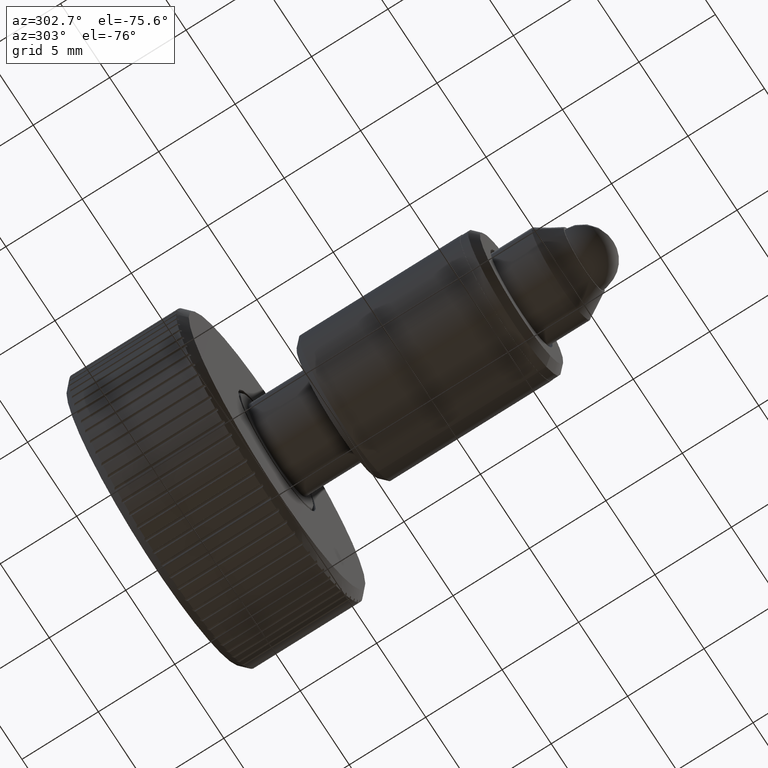
[diagram: clean part render]
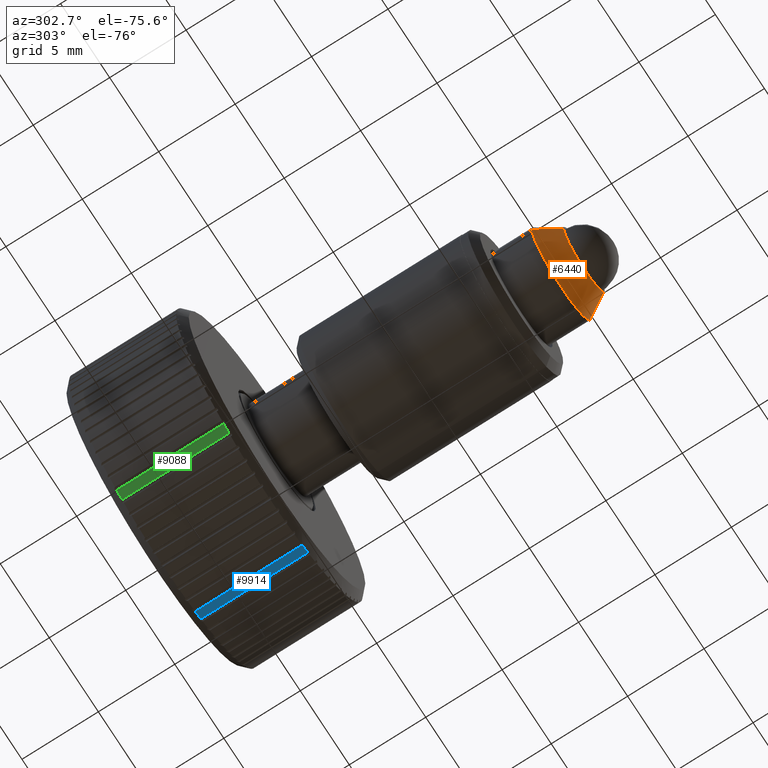
[diagram: same view with three faces highlighted in distinct colors, each labeled with its STEP entity id]
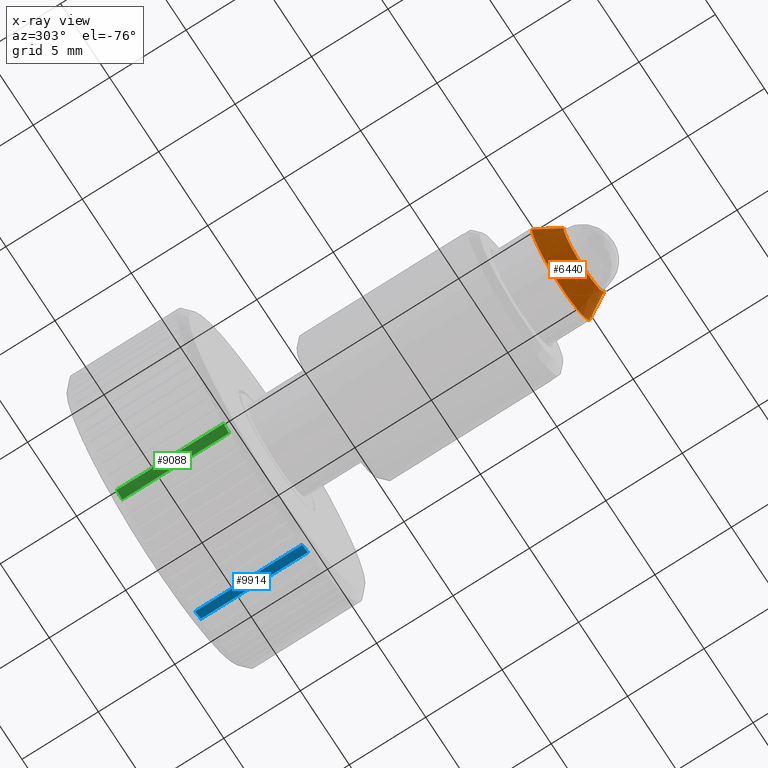
[diagram: x-ray of the same camera — body ghosted, the three highlighted faces saturated]
A machine part, auxiliary view with three faces highlighted in distinct colors.
The next image is the same camera in x-ray (body ghosted, the three faces saturated) — at least one of them is partly hidden behind the body in this view.
Their STEP definitions:

[orange] entity #6440 — the highlighted conical surface has half-angle 30.964 deg.
#38 = CARTESIAN_POINT ( 'NONE',  ( 2.100000000000000500, 7.332110811570581600E-015, 3.122849337825748400E-016 ) ) ;
#2040 = CARTESIAN_POINT ( 'NONE',  ( -2.100000000000000500, -7.332110811570581600E-015, 0.0000000000000000000 ) ) ;
#2193 = DIRECTION ( 'NONE',  ( -0.5144957554275266800, 0.8574929257125441000, 0.0000000000000000000 ) ) ;
#2222 = DIRECTION ( 'NONE',  ( 3.491481338843133000E-015, -1.000000000000000000, -0.0000000000000000000 ) ) ;
#2495 = DIRECTION ( 'NONE',  ( 0.5144957554275206800, 0.8574929257125477600, 6.300755800592165200E-017 ) ) ;
#2746 = CONICAL_SURFACE ( 'NONE', #8875, 2.999999999999994700, 0.5404195002705808300 ) ;
#2795 = LINE ( 'NONE', #9478, #5134 ) ;
#2944 = VECTOR ( 'NONE', #2193, 1000.000000000000000 ) ;
#3259 = VERTEX_POINT ( 'NONE', #5432 ) ;
#3959 = VERTEX_POINT ( 'NONE', #10081 ) ;
#4637 = CARTESIAN_POINT ( 'NONE',  ( 9.860761315262647600E-029, 0.0000000000000000000, 0.0000000000000000000 ) ) ;
#5088 = DIRECTION ( 'NONE',  ( -1.000000000000000000, -3.469446951953620500E-015, 0.0000000000000000000 ) ) ;
#5134 = VECTOR ( 'NONE', #2495, 999.9999999999998900 ) ;
#5432 = CARTESIAN_POINT ( 'NONE',  ( 2.999999999999989800, 1.500000000000011800, 3.673940397442053500E-016 ) ) ;
#5521 = DIRECTION ( 'NONE',  ( 1.000000000000000000, 3.491481338843133400E-015, 0.0000000000000000000 ) ) ;
#5684 = CARTESIAN_POINT ( 'NONE',  ( -3.000000000000000000, 1.499999999999990900, 0.0000000000000000000 ) ) ;
#5867 = VERTEX_POINT ( 'NONE', #2040 ) ;
#5887 = AXIS2_PLACEMENT_3D ( 'NONE', #7473, #2222, #8332 ) ;
#6057 = ORIENTED_EDGE ( 'NONE', *, *, #11306, .T. ) ;
#6245 = EDGE_CURVE ( 'NONE', #5867, #9790, #7578, .T. ) ;
#6440 = ADVANCED_FACE ( 'NONE', ( #10543 ), #2746, .T. ) ;
#6522 = EDGE_LOOP ( 'NONE', ( #10217, #7838, #6057, #9026 ) ) ;
#6782 = AXIS2_PLACEMENT_3D ( 'NONE', #4637, #10742, #5521 ) ;
#6815 = DIRECTION ( 'NONE',  ( -3.491481338843133000E-015, 1.000000000000000000, 0.0000000000000000000 ) ) ;
#7087 = EDGE_CURVE ( 'NONE', #3959, #3259, #7539, .T. ) ;
#7473 = CARTESIAN_POINT ( 'NONE',  ( -5.237222008264609300E-015, 1.500000000000001300, 0.0000000000000000000 ) ) ;
#7539 = CIRCLE ( 'NONE', #5887, 2.999999999999994700 ) ;
#7578 = CIRCLE ( 'NONE', #6782, 2.100000000000000500 ) ;
#7602 = LINE ( 'NONE', #5684, #2944 ) ;
#7656 = CARTESIAN_POINT ( 'NONE',  ( -5.237222008264609300E-015, 1.500000000000001300, 0.0000000000000000000 ) ) ;
#7838 = ORIENTED_EDGE ( 'NONE', *, *, #6245, .F. ) ;
#8332 = DIRECTION ( 'NONE',  ( 1.000000000000000000, 3.469446951953620500E-015, 0.0000000000000000000 ) ) ;
#8723 = EDGE_CURVE ( 'NONE', #9790, #3259, #2795, .T. ) ;
#8875 = AXIS2_PLACEMENT_3D ( 'NONE', #7656, #6815, #5088 ) ;
#9026 = ORIENTED_EDGE ( 'NONE', *, *, #7087, .T. ) ;
#9478 = CARTESIAN_POINT ( 'NONE',  ( 2.999999999999989800, 1.500000000000011800, 3.673940397442053500E-016 ) ) ;
#9790 = VERTEX_POINT ( 'NONE', #38 ) ;
#10081 = CARTESIAN_POINT ( 'NONE',  ( -3.000000000000000000, 1.499999999999990900, 0.0000000000000000000 ) ) ;
#10217 = ORIENTED_EDGE ( 'NONE', *, *, #8723, .F. ) ;
#10543 = FACE_OUTER_BOUND ( 'NONE', #6522, .T. ) ;
#10742 = DIRECTION ( 'NONE',  ( 3.491481338843133000E-015, -1.000000000000000000, -0.0000000000000000000 ) ) ;
#11306 = EDGE_CURVE ( 'NONE', #5867, #3959, #7602, .T. ) ;

[blue] entity #9914 — the highlighted cylindrical surface (partial cylindrical patch) has radius 9.5 mm, axis along (-0, 1, 0).
#200 = ORIENTED_EDGE ( 'NONE', *, *, #1092, .T. ) ;
#302 = CIRCLE ( 'NONE', #6829, 9.500000000000001800 ) ;
#421 = DIRECTION ( 'NONE',  ( -3.491481338843133000E-015, 1.000000000000000000, -0.0000000000000000000 ) ) ;
#495 = DIRECTION ( 'NONE',  ( 3.491481338843133000E-015, -1.000000000000000000, 0.0000000000000000000 ) ) ;
#1092 = EDGE_CURVE ( 'NONE', #7030, #4915, #10650, .T. ) ;
#2082 = CARTESIAN_POINT ( 'NONE',  ( -7.017877491074688600E-014, 20.10000000000001200, 3.155443620884047200E-030 ) ) ;
#2160 = LINE ( 'NONE', #9391, #6554 ) ;
#2364 = ORIENTED_EDGE ( 'NONE', *, *, #3433, .T. ) ;
#2465 = AXIS2_PLACEMENT_3D ( 'NONE', #5665, #421, #6544 ) ;
#2599 = CYLINDRICAL_SURFACE ( 'NONE', #7422, 9.500000000000001800 ) ;
#2949 = CARTESIAN_POINT ( 'NONE',  ( 3.342979311548198500, 20.60000000000002300, -8.892383781785415700 ) ) ;
#3433 = EDGE_CURVE ( 'NONE', #8078, #7030, #6751, .T. ) ;
#3890 = DIRECTION ( 'NONE',  ( -1.000000000000000000, -3.652049423109067200E-015, 3.491481338843132600E-015 ) ) ;
#4424 = CARTESIAN_POINT ( 'NONE',  ( 3.342979311548173600, 27.60000000000002300, -8.892383781785415700 ) ) ;
#4915 = VERTEX_POINT ( 'NONE', #4424 ) ;
#4964 = VERTEX_POINT ( 'NONE', #9033 ) ;
#5099 = DIRECTION ( 'NONE',  ( 3.491481338843133000E-015, -1.000000000000000000, -0.0000000000000000000 ) ) ;
#5310 = DIRECTION ( 'NONE',  ( -3.491481338843133000E-015, 1.000000000000000000, 0.0000000000000000000 ) ) ;
#5665 = CARTESIAN_POINT ( 'NONE',  ( -7.192451558016843400E-014, 20.60000000000000900, 3.155443620884047200E-030 ) ) ;
#5729 = CARTESIAN_POINT ( 'NONE',  ( -9.636488495207038000E-014, 27.60000000000001200, 3.155443620884047200E-030 ) ) ;
#6180 = CARTESIAN_POINT ( 'NONE',  ( 3.342979311548186100, 24.10000000000002300, -8.892383781785415700 ) ) ;
#6544 = DIRECTION ( 'NONE',  ( 1.000000000000000000, 3.652049423109067200E-015, -3.491481338843132600E-015 ) ) ;
#6554 = VECTOR ( 'NONE', #5099, 1000.000000000000000 ) ;
#6619 = DIRECTION ( 'NONE',  ( 1.000000000000000000, 3.652049423109067200E-015, -3.491481338843132600E-015 ) ) ;
#6751 = CIRCLE ( 'NONE', #2465, 9.500000000000001800 ) ;
#6829 = AXIS2_PLACEMENT_3D ( 'NONE', #5729, #495, #6619 ) ;
#7030 = VERTEX_POINT ( 'NONE', #2949 ) ;
#7422 = AXIS2_PLACEMENT_3D ( 'NONE', #2082, #8168, #3890 ) ;
#7637 = ORIENTED_EDGE ( 'NONE', *, *, #10083, .T. ) ;
#8078 = VERTEX_POINT ( 'NONE', #9124 ) ;
#8168 = DIRECTION ( 'NONE',  ( -3.491481338843133000E-015, 1.000000000000000000, 0.0000000000000000000 ) ) ;
#8331 = ORIENTED_EDGE ( 'NONE', *, *, #9935, .T. ) ;
#9033 = CARTESIAN_POINT ( 'NONE',  ( 3.924021532451366800, 27.60000000000002300, -8.651708213575934900 ) ) ;
#9124 = CARTESIAN_POINT ( 'NONE',  ( 3.924021532451391600, 20.60000000000002300, -8.651708213575936700 ) ) ;
#9313 = EDGE_LOOP ( 'NONE', ( #2364, #200, #8331, #7637 ) ) ;
#9391 = CARTESIAN_POINT ( 'NONE',  ( 3.924021532451378700, 24.10000000000002600, -8.651708213575934900 ) ) ;
#9914 = ADVANCED_FACE ( 'NONE', ( #10395 ), #2599, .T. ) ;
#9935 = EDGE_CURVE ( 'NONE', #4915, #4964, #302, .T. ) ;
#10083 = EDGE_CURVE ( 'NONE', #4964, #8078, #2160, .T. ) ;
#10374 = VECTOR ( 'NONE', #5310, 1000.000000000000000 ) ;
#10395 = FACE_OUTER_BOUND ( 'NONE', #9313, .T. ) ;
#10650 = LINE ( 'NONE', #6180, #10374 ) ;

[green] entity #9088 — the highlighted cylindrical surface (partial cylindrical patch) has radius 9.5 mm, axis along (-0, 1, 0).
#63 = EDGE_CURVE ( 'NONE', #2173, #1668, #3501, .T. ) ;
#449 = AXIS2_PLACEMENT_3D ( 'NONE', #9722, #4503, #10603 ) ;
#481 = ORIENTED_EDGE ( 'NONE', *, *, #5815, .T. ) ;
#708 = DIRECTION ( 'NONE',  ( -3.491481338843133000E-015, 1.000000000000000000, 0.0000000000000000000 ) ) ;
#843 = CARTESIAN_POINT ( 'NONE',  ( -7.017877491074688600E-014, 20.10000000000001200, 3.155443620884047200E-030 ) ) ;
#1122 = EDGE_CURVE ( 'NONE', #10012, #2173, #4936, .T. ) ;
#1164 = CIRCLE ( 'NONE', #9518, 9.500000000000001800 ) ;
#1190 = VECTOR ( 'NONE', #10561, 1000.000000000000000 ) ;
#1668 = VERTEX_POINT ( 'NONE', #8559 ) ;
#2086 = CARTESIAN_POINT ( 'NONE',  ( -4.105280579293779700, 24.10000000000000100, -8.567185731923528300 ) ) ;
#2173 = VERTEX_POINT ( 'NONE', #4035 ) ;
#2378 = EDGE_CURVE ( 'NONE', #6496, #10012, #8938, .T. ) ;
#3255 = ORIENTED_EDGE ( 'NONE', *, *, #1122, .T. ) ;
#3501 = LINE ( 'NONE', #2086, #1190 ) ;
#3720 = CARTESIAN_POINT ( 'NONE',  ( -7.192451558016843400E-014, 20.60000000000000900, 3.155443620884047200E-030 ) ) ;
#4035 = CARTESIAN_POINT ( 'NONE',  ( -4.105280579293792100, 27.59999999999999400, -8.567185731923528300 ) ) ;
#4356 = DIRECTION ( 'NONE',  ( -1.000000000000000000, -3.652049423109067200E-015, 3.491481338843132600E-015 ) ) ;
#4503 = DIRECTION ( 'NONE',  ( 3.491481338843133000E-015, -1.000000000000000000, 0.0000000000000000000 ) ) ;
#4613 = DIRECTION ( 'NONE',  ( 1.000000000000000000, 3.652049423109067200E-015, -3.491481338843132600E-015 ) ) ;
#4936 = CIRCLE ( 'NONE', #449, 9.500000000000001800 ) ;
#5066 = CARTESIAN_POINT ( 'NONE',  ( -4.663135501216476800, 24.09999999999999800, -8.276784840582447300 ) ) ;
#5815 = EDGE_CURVE ( 'NONE', #1668, #6496, #1164, .T. ) ;
#6034 = DIRECTION ( 'NONE',  ( -3.491481338843133000E-015, 1.000000000000000000, 0.0000000000000000000 ) ) ;
#6348 = CYLINDRICAL_SURFACE ( 'NONE', #11270, 9.500000000000001800 ) ;
#6496 = VERTEX_POINT ( 'NONE', #10744 ) ;
#6645 = VECTOR ( 'NONE', #708, 1000.000000000000000 ) ;
#6890 = EDGE_LOOP ( 'NONE', ( #481, #10938, #3255, #11262 ) ) ;
#7467 = FACE_OUTER_BOUND ( 'NONE', #6890, .T. ) ;
#8559 = CARTESIAN_POINT ( 'NONE',  ( -4.105280579293768100, 20.59999999999999400, -8.567185731923528300 ) ) ;
#8938 = LINE ( 'NONE', #5066, #6645 ) ;
#9088 = ADVANCED_FACE ( 'NONE', ( #7467 ), #6348, .T. ) ;
#9518 = AXIS2_PLACEMENT_3D ( 'NONE', #3720, #9816, #4613 ) ;
#9722 = CARTESIAN_POINT ( 'NONE',  ( -9.636488495207038000E-014, 27.60000000000001200, 3.155443620884047200E-030 ) ) ;
#9816 = DIRECTION ( 'NONE',  ( -3.491481338843133000E-015, 1.000000000000000000, -0.0000000000000000000 ) ) ;
#10012 = VERTEX_POINT ( 'NONE', #10205 ) ;
#10205 = CARTESIAN_POINT ( 'NONE',  ( -4.663135501216489200, 27.59999999999999400, -8.276784840582447300 ) ) ;
#10561 = DIRECTION ( 'NONE',  ( 3.491481338843133000E-015, -1.000000000000000000, -0.0000000000000000000 ) ) ;
#10603 = DIRECTION ( 'NONE',  ( 1.000000000000000000, 3.652049423109067200E-015, -3.491481338843132600E-015 ) ) ;
#10744 = CARTESIAN_POINT ( 'NONE',  ( -4.663135501216463500, 20.59999999999999400, -8.276784840582445600 ) ) ;
#10938 = ORIENTED_EDGE ( 'NONE', *, *, #2378, .T. ) ;
#11262 = ORIENTED_EDGE ( 'NONE', *, *, #63, .T. ) ;
#11270 = AXIS2_PLACEMENT_3D ( 'NONE', #843, #6034, #4356 ) ;